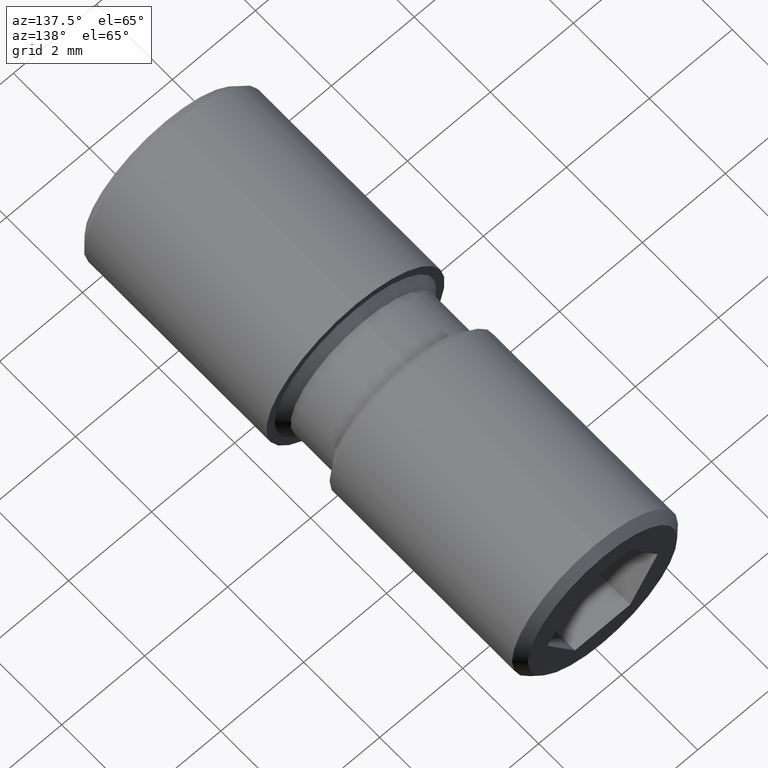
[diagram: clean part render]
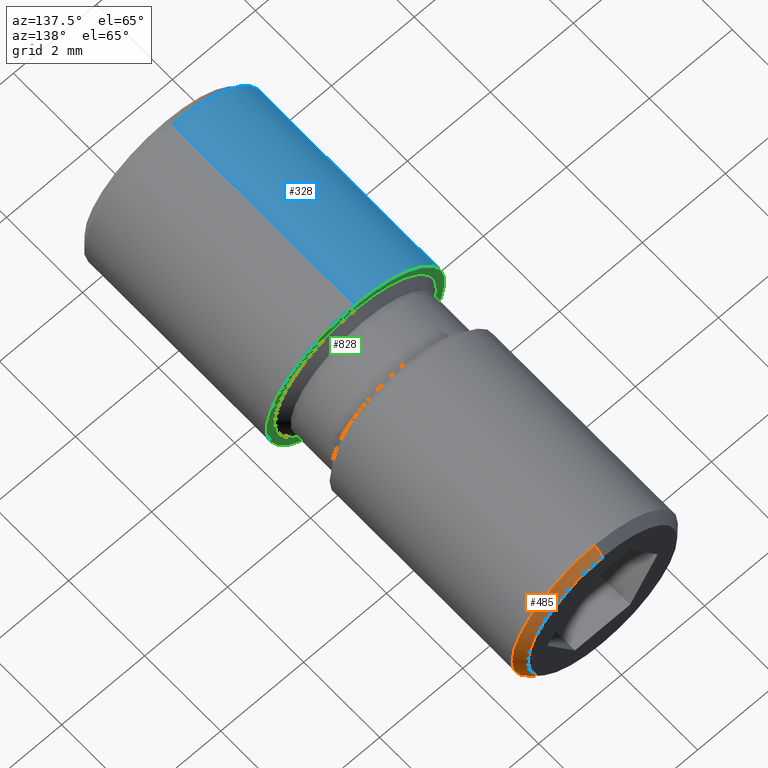
[diagram: same view with three faces highlighted in distinct colors, each labeled with its STEP entity id]
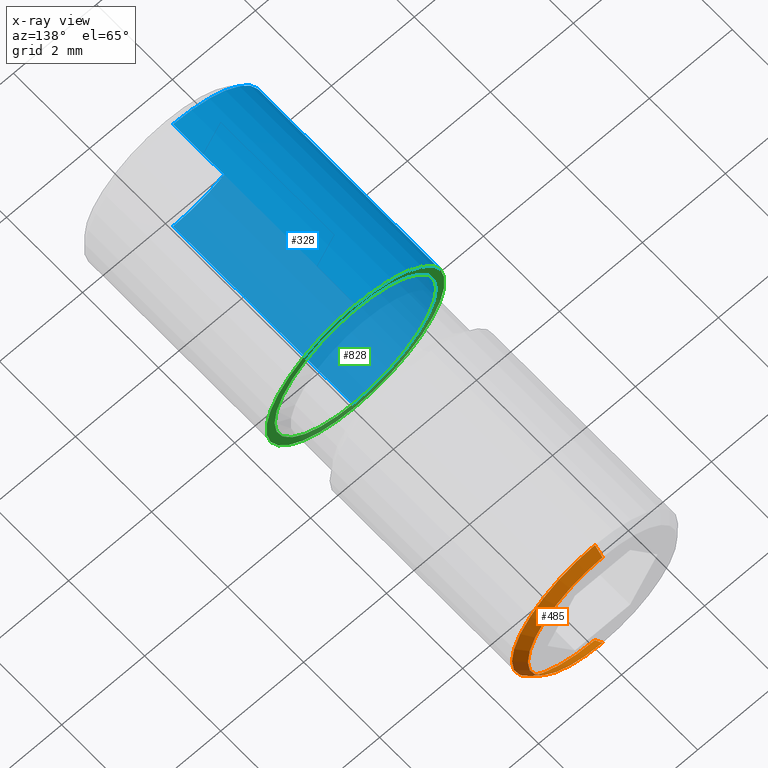
[diagram: x-ray of the same camera — body ghosted, the three highlighted faces saturated]
A machine part, auxiliary view with three faces highlighted in distinct colors.
The next image is the same camera in x-ray (body ghosted, the three faces saturated) — at least one of them is partly hidden behind the body in this view.
Their STEP definitions:

[orange] entity #485 — the highlighted conical surface has half-angle 45 deg.
#56 = DIRECTION ( 'NONE',  ( 0.0000000000000000000, -1.000000000000000000, 0.0000000000000000000 ) ) ;
#62 = DIRECTION ( 'NONE',  ( 0.0000000000000000000, 0.0000000000000000000, 1.000000000000000000 ) ) ;
#76 = EDGE_CURVE ( 'NONE', #344, #688, #359, .T. ) ;
#90 = VERTEX_POINT ( 'NONE', #386 ) ;
#124 = CARTESIAN_POINT ( 'NONE',  ( 2.326828918379969900E-016, 11.50000000000000000, 1.799999999999997800 ) ) ;
#132 = ORIENTED_EDGE ( 'NONE', *, *, #76, .T. ) ;
#152 = CARTESIAN_POINT ( 'NONE',  ( 0.0000000000000000000, 11.50000000000000000, -1.799999999999997800 ) ) ;
#216 = VECTOR ( 'NONE', #294, 1000.000000000000100 ) ;
#227 = FACE_OUTER_BOUND ( 'NONE', #691, .T. ) ;
#258 = CIRCLE ( 'NONE', #739, 2.000000000000000000 ) ;
#294 = DIRECTION ( 'NONE',  ( 0.0000000000000000000, -0.7071067811865506800, -0.7071067811865443500 ) ) ;
#317 = CARTESIAN_POINT ( 'NONE',  ( 0.0000000000000000000, 11.29999999999999500, -2.000000000000000000 ) ) ;
#344 = VERTEX_POINT ( 'NONE', #124 ) ;
#345 = CARTESIAN_POINT ( 'NONE',  ( 0.0000000000000000000, 11.50000000000000000, 0.0000000000000000000 ) ) ;
#359 = LINE ( 'NONE', #656, #743 ) ;
#386 = CARTESIAN_POINT ( 'NONE',  ( 0.0000000000000000000, 11.50000000000000000, -1.799999999999997800 ) ) ;
#413 = AXIS2_PLACEMENT_3D ( 'NONE', #345, #420, #841 ) ;
#420 = DIRECTION ( 'NONE',  ( 0.0000000000000000000, 1.000000000000000000, 0.0000000000000000000 ) ) ;
#432 = EDGE_CURVE ( 'NONE', #518, #688, #258, .T. ) ;
#461 = ORIENTED_EDGE ( 'NONE', *, *, #432, .F. ) ;
#485 = ADVANCED_FACE ( 'NONE', ( #227 ), #729, .T. ) ;
#500 = CARTESIAN_POINT ( 'NONE',  ( 0.0000000000000000000, 11.29999999999999500, 0.0000000000000000000 ) ) ;
#513 = AXIS2_PLACEMENT_3D ( 'NONE', #785, #56, #561 ) ;
#518 = VERTEX_POINT ( 'NONE', #317 ) ;
#526 = CARTESIAN_POINT ( 'NONE',  ( 2.449293598294706400E-016, 11.29999999999999500, 2.000000000000000000 ) ) ;
#561 = DIRECTION ( 'NONE',  ( 0.0000000000000000000, 0.0000000000000000000, -1.000000000000000000 ) ) ;
#574 = LINE ( 'NONE', #152, #216 ) ;
#609 = ORIENTED_EDGE ( 'NONE', *, *, #716, .F. ) ;
#656 = CARTESIAN_POINT ( 'NONE',  ( 2.204364238465233100E-016, 11.50000000000000000, 1.799999999999997800 ) ) ;
#688 = VERTEX_POINT ( 'NONE', #526 ) ;
#691 = EDGE_LOOP ( 'NONE', ( #609, #132, #461, #762 ) ) ;
#712 = DIRECTION ( 'NONE',  ( 0.0000000000000000000, -1.000000000000000000, 0.0000000000000000000 ) ) ;
#716 = EDGE_CURVE ( 'NONE', #344, #90, #851, .T. ) ;
#729 = CONICAL_SURFACE ( 'NONE', #513, 1.799999999999997800, 0.7853981633974439500 ) ;
#739 = AXIS2_PLACEMENT_3D ( 'NONE', #500, #712, #62 ) ;
#743 = VECTOR ( 'NONE', #893, 1000.000000000000100 ) ;
#762 = ORIENTED_EDGE ( 'NONE', *, *, #809, .F. ) ;
#785 = CARTESIAN_POINT ( 'NONE',  ( 0.0000000000000000000, 11.50000000000000000, 0.0000000000000000000 ) ) ;
#809 = EDGE_CURVE ( 'NONE', #90, #518, #574, .T. ) ;
#841 = DIRECTION ( 'NONE',  ( 0.0000000000000000000, 0.0000000000000000000, 1.000000000000000000 ) ) ;
#851 = CIRCLE ( 'NONE', #413, 1.799999999999997800 ) ;
#893 = DIRECTION ( 'NONE',  ( 8.659560562354895900E-017, -0.7071067811865506800, 0.7071067811865443500 ) ) ;

[blue] entity #328 — the highlighted cylindrical surface (partial cylindrical patch) has radius 2.15 mm, axis along (-0, -1, -0).
#37 = EDGE_CURVE ( 'NONE', #517, #394, #61, .T. ) ;
#40 = ORIENTED_EDGE ( 'NONE', *, *, #37, .F. ) ;
#46 = EDGE_CURVE ( 'NONE', #644, #941, #648, .T. ) ;
#61 = LINE ( 'NONE', #457, #97 ) ;
#97 = VECTOR ( 'NONE', #737, 1000.000000000000000 ) ;
#115 = ORIENTED_EDGE ( 'NONE', *, *, #46, .T. ) ;
#130 = AXIS2_PLACEMENT_3D ( 'NONE', #133, #632, #928 ) ;
#133 = CARTESIAN_POINT ( 'NONE',  ( 0.0000000000000000000, 0.1999999999999987900, 0.0000000000000000000 ) ) ;
#145 = CARTESIAN_POINT ( 'NONE',  ( 2.632990618166809200E-016, 0.1999999999999987900, 2.149999999999999900 ) ) ;
#292 = DIRECTION ( 'NONE',  ( 0.0000000000000000000, 0.0000000000000000000, 1.000000000000000000 ) ) ;
#318 = CIRCLE ( 'NONE', #130, 2.149999999999999900 ) ;
#319 = CARTESIAN_POINT ( 'NONE',  ( 0.0000000000000000000, 5.000000000000000000, -2.149999999999999900 ) ) ;
#328 = ADVANCED_FACE ( 'NONE', ( #789 ), #589, .T. ) ;
#350 = CARTESIAN_POINT ( 'NONE',  ( 0.0000000000000000000, 5.000000000000000000, 0.0000000000000000000 ) ) ;
#380 = CARTESIAN_POINT ( 'NONE',  ( 0.0000000000000000000, 5.000000000000000000, -2.149999999999999900 ) ) ;
#388 = AXIS2_PLACEMENT_3D ( 'NONE', #350, #850, #550 ) ;
#389 = CARTESIAN_POINT ( 'NONE',  ( 2.632990618166809200E-016, 5.000000000000000000, 2.149999999999999900 ) ) ;
#394 = VERTEX_POINT ( 'NONE', #145 ) ;
#431 = CIRCLE ( 'NONE', #612, 2.149999999999999900 ) ;
#457 = CARTESIAN_POINT ( 'NONE',  ( 2.632990618166809200E-016, 5.000000000000000000, 2.149999999999999900 ) ) ;
#517 = VERTEX_POINT ( 'NONE', #389 ) ;
#550 = DIRECTION ( 'NONE',  ( 0.0000000000000000000, 0.0000000000000000000, -1.000000000000000000 ) ) ;
#563 = ORIENTED_EDGE ( 'NONE', *, *, #696, .T. ) ;
#577 = DIRECTION ( 'NONE',  ( -0.0000000000000000000, -1.000000000000000000, -0.0000000000000000000 ) ) ;
#589 = CYLINDRICAL_SURFACE ( 'NONE', #388, 2.149999999999999900 ) ;
#592 = EDGE_LOOP ( 'NONE', ( #40, #950, #115, #563 ) ) ;
#612 = AXIS2_PLACEMENT_3D ( 'NONE', #692, #722, #292 ) ;
#619 = EDGE_CURVE ( 'NONE', #644, #517, #431, .T. ) ;
#632 = DIRECTION ( 'NONE',  ( -0.0000000000000000000, 1.000000000000000000, -0.0000000000000000000 ) ) ;
#644 = VERTEX_POINT ( 'NONE', #319 ) ;
#648 = LINE ( 'NONE', #380, #897 ) ;
#668 = CARTESIAN_POINT ( 'NONE',  ( 0.0000000000000000000, 0.1999999999999987900, -2.149999999999999900 ) ) ;
#692 = CARTESIAN_POINT ( 'NONE',  ( 0.0000000000000000000, 5.000000000000000000, 0.0000000000000000000 ) ) ;
#696 = EDGE_CURVE ( 'NONE', #941, #394, #318, .T. ) ;
#722 = DIRECTION ( 'NONE',  ( 0.0000000000000000000, 1.000000000000000000, 0.0000000000000000000 ) ) ;
#737 = DIRECTION ( 'NONE',  ( -0.0000000000000000000, -1.000000000000000000, -0.0000000000000000000 ) ) ;
#789 = FACE_OUTER_BOUND ( 'NONE', #592, .T. ) ;
#850 = DIRECTION ( 'NONE',  ( -0.0000000000000000000, -1.000000000000000000, -0.0000000000000000000 ) ) ;
#897 = VECTOR ( 'NONE', #577, 1000.000000000000000 ) ;
#928 = DIRECTION ( 'NONE',  ( 0.0000000000000000000, 0.0000000000000000000, 1.000000000000000000 ) ) ;
#941 = VERTEX_POINT ( 'NONE', #668 ) ;
#950 = ORIENTED_EDGE ( 'NONE', *, *, #619, .F. ) ;

[green] entity #828 — the highlighted planar face has unit normal (0, 1, 0).
#10 = CIRCLE ( 'NONE', #823, 2.149999999999999900 ) ;
#23 = EDGE_LOOP ( 'NONE', ( #410, #377 ) ) ;
#66 = VERTEX_POINT ( 'NONE', #383 ) ;
#125 = AXIS2_PLACEMENT_3D ( 'NONE', #882, #529, #523 ) ;
#180 = EDGE_LOOP ( 'NONE', ( #206, #313 ) ) ;
#206 = ORIENTED_EDGE ( 'NONE', *, *, #619, .T. ) ;
#232 = VERTEX_POINT ( 'NONE', #901 ) ;
#268 = FACE_OUTER_BOUND ( 'NONE', #180, .T. ) ;
#286 = DIRECTION ( 'NONE',  ( 0.0000000000000000000, -0.0000000000000000000, 1.000000000000000000 ) ) ;
#292 = DIRECTION ( 'NONE',  ( 0.0000000000000000000, 0.0000000000000000000, 1.000000000000000000 ) ) ;
#313 = ORIENTED_EDGE ( 'NONE', *, *, #498, .T. ) ;
#319 = CARTESIAN_POINT ( 'NONE',  ( 0.0000000000000000000, 5.000000000000000000, -2.149999999999999900 ) ) ;
#320 = AXIS2_PLACEMENT_3D ( 'NONE', #801, #441, #876 ) ;
#377 = ORIENTED_EDGE ( 'NONE', *, *, #830, .T. ) ;
#383 = CARTESIAN_POINT ( 'NONE',  ( 0.0000000000000000000, 5.000000000000000000, -1.950000000000002200 ) ) ;
#389 = CARTESIAN_POINT ( 'NONE',  ( 2.632990618166809200E-016, 5.000000000000000000, 2.149999999999999900 ) ) ;
#405 = DIRECTION ( 'NONE',  ( 0.0000000000000000000, 0.0000000000000000000, 1.000000000000000000 ) ) ;
#410 = ORIENTED_EDGE ( 'NONE', *, *, #933, .T. ) ;
#431 = CIRCLE ( 'NONE', #612, 2.149999999999999900 ) ;
#441 = DIRECTION ( 'NONE',  ( -0.0000000000000000000, -1.000000000000000000, -0.0000000000000000000 ) ) ;
#470 = FACE_BOUND ( 'NONE', #23, .T. ) ;
#498 = EDGE_CURVE ( 'NONE', #517, #644, #10, .T. ) ;
#504 = CARTESIAN_POINT ( 'NONE',  ( 0.0000000000000000000, 5.000000000000000000, 0.0000000000000000000 ) ) ;
#517 = VERTEX_POINT ( 'NONE', #389 ) ;
#523 = DIRECTION ( 'NONE',  ( 0.0000000000000000000, 0.0000000000000000000, 1.000000000000000000 ) ) ;
#529 = DIRECTION ( 'NONE',  ( -0.0000000000000000000, -1.000000000000000000, -0.0000000000000000000 ) ) ;
#576 = PLANE ( 'NONE',  #856 ) ;
#607 = DIRECTION ( 'NONE',  ( 0.0000000000000000000, 1.000000000000000000, 0.0000000000000000000 ) ) ;
#612 = AXIS2_PLACEMENT_3D ( 'NONE', #692, #722, #292 ) ;
#619 = EDGE_CURVE ( 'NONE', #644, #517, #431, .T. ) ;
#642 = DIRECTION ( 'NONE',  ( 0.0000000000000000000, 1.000000000000000000, 0.0000000000000000000 ) ) ;
#644 = VERTEX_POINT ( 'NONE', #319 ) ;
#692 = CARTESIAN_POINT ( 'NONE',  ( 0.0000000000000000000, 5.000000000000000000, 0.0000000000000000000 ) ) ;
#722 = DIRECTION ( 'NONE',  ( 0.0000000000000000000, 1.000000000000000000, 0.0000000000000000000 ) ) ;
#745 = CIRCLE ( 'NONE', #320, 1.950000000000002200 ) ;
#801 = CARTESIAN_POINT ( 'NONE',  ( 0.0000000000000000000, 5.000000000000000000, 0.0000000000000000000 ) ) ;
#822 = CARTESIAN_POINT ( 'NONE',  ( 0.0000000000000000000, 5.000000000000000000, 0.0000000000000000000 ) ) ;
#823 = AXIS2_PLACEMENT_3D ( 'NONE', #822, #607, #405 ) ;
#828 = ADVANCED_FACE ( 'NONE', ( #470, #268 ), #576, .T. ) ;
#830 = EDGE_CURVE ( 'NONE', #232, #66, #745, .T. ) ;
#856 = AXIS2_PLACEMENT_3D ( 'NONE', #504, #642, #286 ) ;
#869 = CIRCLE ( 'NONE', #125, 1.950000000000002200 ) ;
#876 = DIRECTION ( 'NONE',  ( 0.0000000000000000000, 0.0000000000000000000, 1.000000000000000000 ) ) ;
#882 = CARTESIAN_POINT ( 'NONE',  ( 0.0000000000000000000, 5.000000000000000000, 0.0000000000000000000 ) ) ;
#901 = CARTESIAN_POINT ( 'NONE',  ( 2.388061258337341600E-016, 5.000000000000000000, 1.950000000000002200 ) ) ;
#933 = EDGE_CURVE ( 'NONE', #66, #232, #869, .T. ) ;